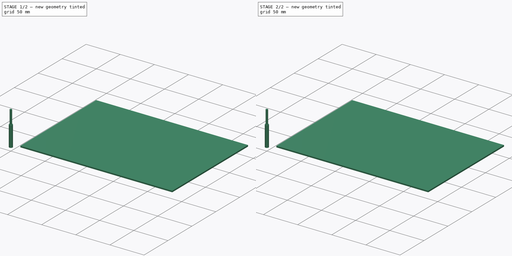
[diagram: build sequence overview — one tinted view per stage of 2, left to right]
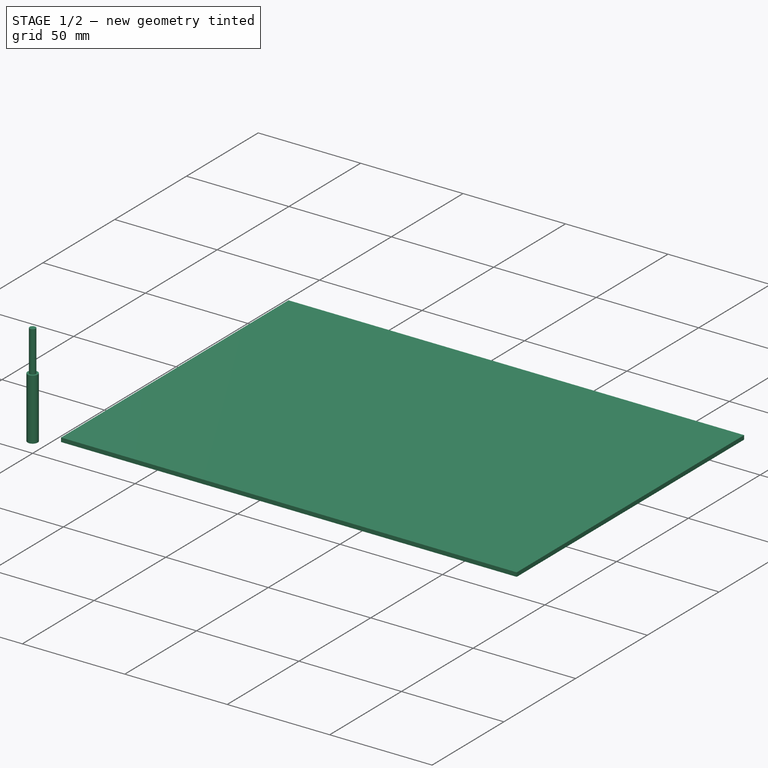
[diagram: stage 1 of 2 — iso view after this stage's code; geometry added in this stage tinted green]
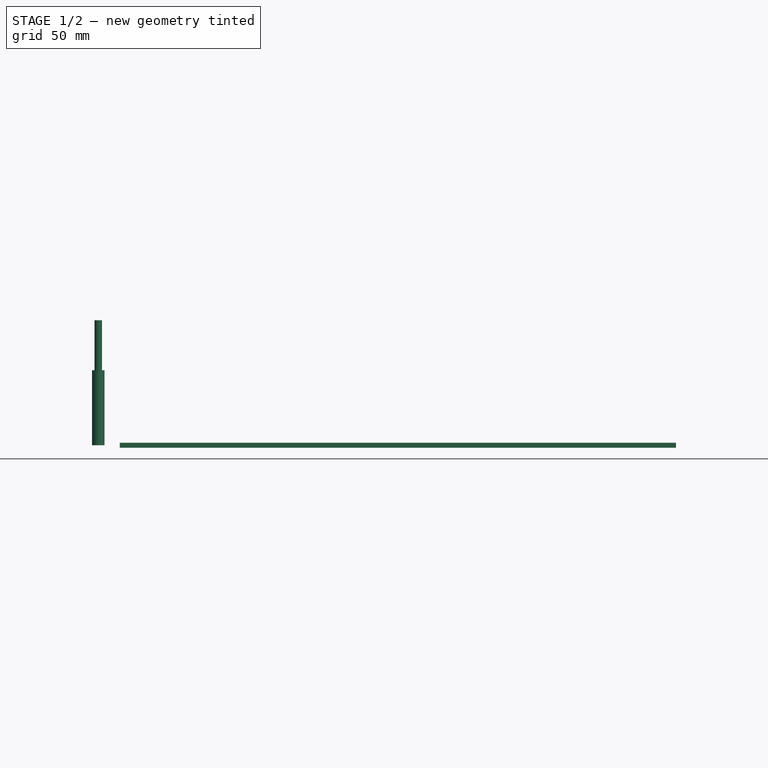
[diagram: stage 1 of 2 — front view after this stage's code; geometry added in this stage tinted green]
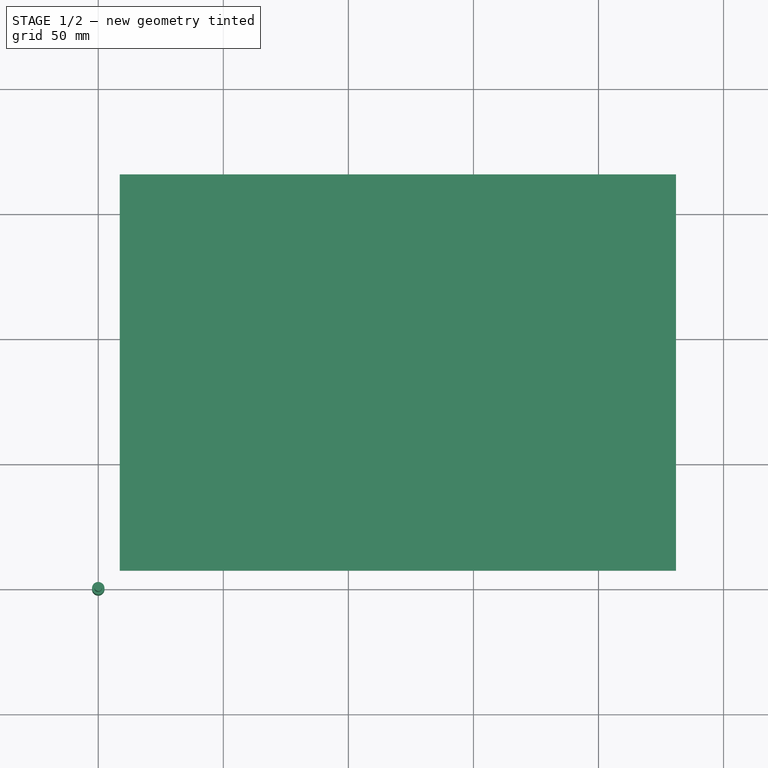
[diagram: stage 1 of 2 — top view after this stage's code; geometry added in this stage tinted green]
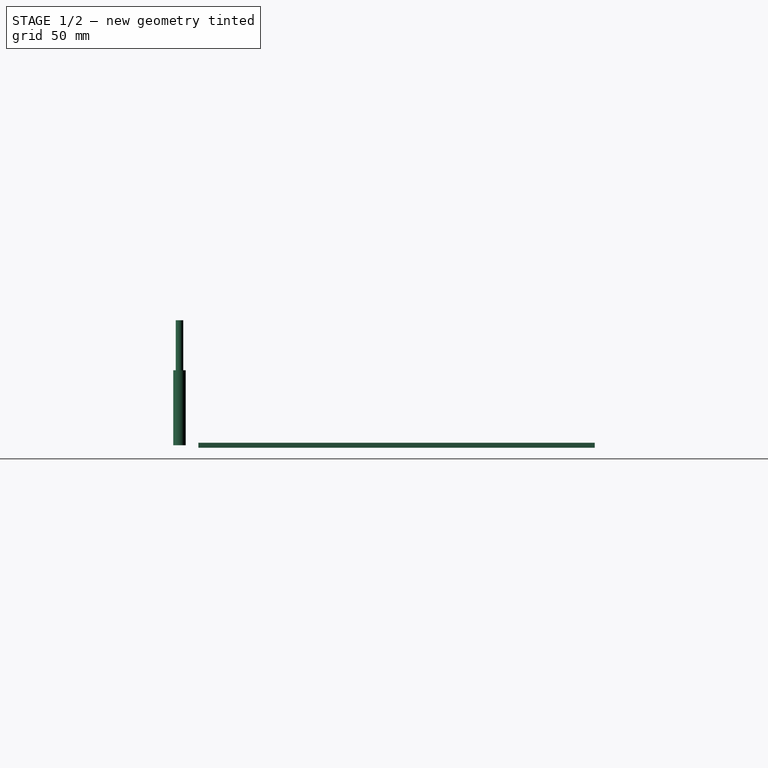
[diagram: stage 1 of 2 — right view after this stage's code; geometry added in this stage tinted green]
FCSTD DOCUMENT  (FreeCAD 1.0R39109 (Git))
Label: testframe
License: All rights reserved
LicenseURL: https://en.wikipedia.org/wiki/All_rights_reserved
objects: Sketcher::SketchObject×3, App::DocumentObjectGroup×3, Part::FeaturePython×3, Path::FeaturePython×3, Part::Part2DObjectPython×2, PartDesign::Body×1, App::FeaturePython×1
note: 12 computed .brp shape members not serialized (recipe doc carries the construction recipe); baked Part::Feature solids carry a one-line shape summary decoded from their .brp

FEATURE [Part::FeaturePython] Stock  # WARN: FeaturePython — macro-defined, semantics opaque (R4)
  Base = -> Model
  ExtXneg = 1
  ExtXpos = 1
  ExtYneg = 1
  ExtYpos = 1
  ExtZneg = 1
  ExtZpos = 1
  Placement = pos=(9.60935,8.51629,0) rot=(0,0,1;0rad)
  StockType = FromBase
FEATURE [Part::FeaturePython] ToolBit001  label="Endmill003"  # Path/CAM toolbit (typed FeaturePython)
  BitPropertyNames = Chipload | CuttingEdgeHeight | Diameter | Flutes | Length | Material | ShankDiameter | SpindleDirection
  BitShape = <path>
  Chipload = 0
  CuttingEdgeHeight = 30
  Diameter = 5
  Flutes = 0
  Length = 50
  Material = 0
  ShankDiameter = 3
  ShapeName = endmill
  SpindleDirection = 0
FEATURE [Path::FeaturePython] TC__Default_Tool  label="TC: Default Tool"  # Path/CAM operation (typed FeaturePython)
  HorizFeed = 0
  HorizRapid = 0
  SpindleDir = 0
  SpindleSpeed = 750
  Tool = -> ToolBit001
  ToolNumber = 1
  VertFeed = 0
  VertRapid = 0
  expr: HorizRapid = SetupSheet.HorizRapid
  expr: VertRapid = SetupSheet.VertRapid
FEATURE [App::DocumentObjectGroup] Tools
  Group = -> [TC__Default_Tool]
FEATURE [Path::FeaturePython] Engrave  # Path/CAM operation (typed FeaturePython)
  Active = true
  ClearanceHeight = 6
  CoolantMode = 0
  CycleTime = Cycletime Error
  FinalDepth = -5
  OpFinalDepth = -5
  OpStartDepth = 0
  OpStockZMax = 1
  OpStockZMin = -1
  OpToolDiameter = 5
  SafeHeight = 4
  StartDepth = 0
  StartVertex = 0
  StepDown = 5
  ToolController = -> TC__Default_Tool
  expr: ClearanceHeight = OpStockZMax + SetupSheet.ClearanceHeightOffset
  expr: FinalDepth = OpFinalDepth
  expr: SafeHeight = OpStockZMax + SetupSheet.SafeHeightOffset
  expr: StartDepth = OpStartDepth
  expr: StepDown = OpToolDiameter
FEATURE [App::DocumentObjectGroup] Operations
  Group = -> [Engrave]
FEATURE [Path::FeaturePython] Job  # Path/CAM operation (typed FeaturePython)
  CycleTime = 00:00:00
  Fixtures = G54
  GeometryTolerance = 0.01
  JobType = 0
  Model = -> Model
  Operations = -> Operations
  OrderOutputBy = 0
  PostProcessor = 1
  SetupSheet = -> SetupSheet
  SplitOutput = false
  Stock = -> Stock
  Tools = -> Tools
note: 2 file-system paths scrubbed to <path> (originals preserved in the JSON sidecar)
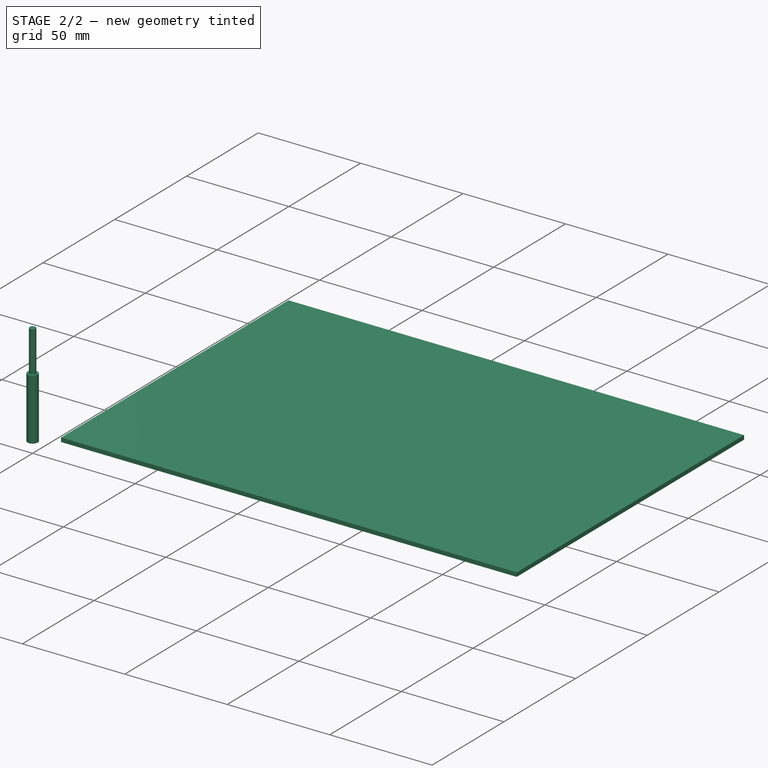
[diagram: stage 2 of 2 — iso view after this stage's code; geometry added in this stage tinted green]
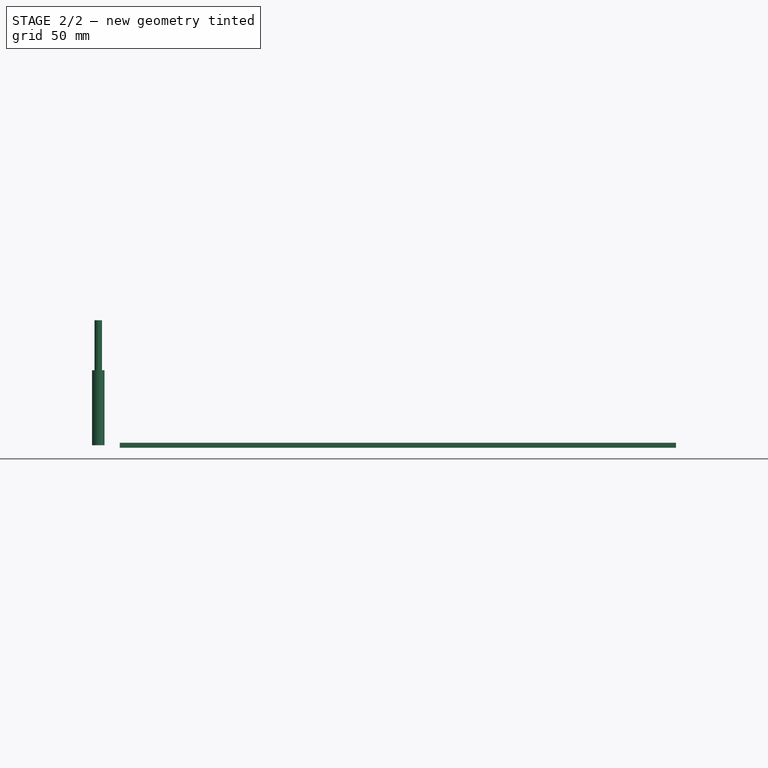
[diagram: stage 2 of 2 — front view after this stage's code; geometry added in this stage tinted green]
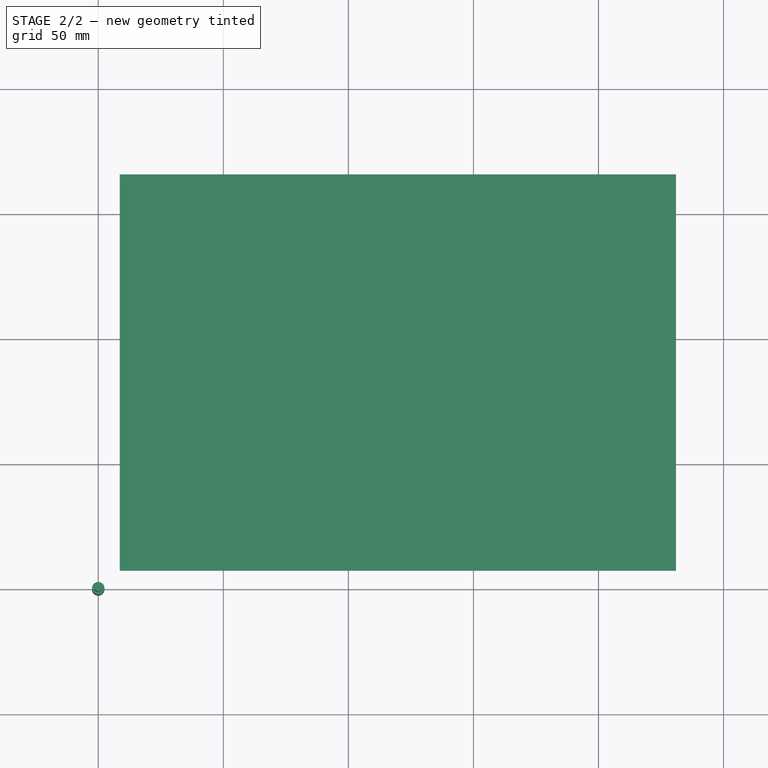
[diagram: stage 2 of 2 — top view after this stage's code; geometry added in this stage tinted green]
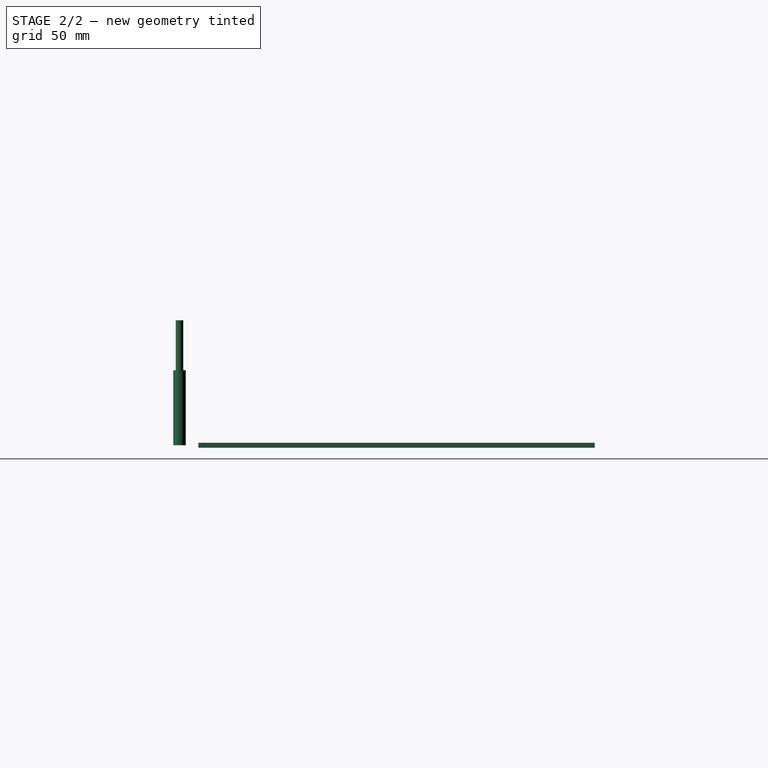
[diagram: stage 2 of 2 — right view after this stage's code; geometry added in this stage tinted green]
FEATURE [Sketcher::SketchObject] Sketch  label="A4"
  ArcFitTolerance = 1e-06
  AttachmentSupport = -> [XY_Plane]
  FullyConstrained = true
  MakeInternals = false
  MapMode = 5
  sketch-geometry (4):
    g0: LineSegment StartX=0 StartY=-4e-16 StartZ=0 EndX=270 EndY=-4e-16 EndZ=0
    g1: LineSegment StartX=270 StartY=-4e-16 StartZ=0 EndX=270 EndY=180 EndZ=0
    g2: LineSegment StartX=270 StartY=180 StartZ=0 EndX=0 EndY=180 EndZ=0
    g3: LineSegment StartX=0 StartY=180 StartZ=0 EndX=0 EndY=0 EndZ=0
  constraints (12):
    c: Coincident(g0,g1)
    c: Coincident(g1,g2)
    c: Coincident(g2,g3)
    c: Coincident(g3,g0)
    c: Horizontal(g0)
    c: Horizontal(g2)
    c: Vertical(g1)
    c: Vertical(g3)
    c: PointOnObject(g0,g-2)
    c: DistanceX(g2,g2) = 270
    c: DistanceY(g3,g3) = 180
    c: PointOnObject(g0,g-1)
FEATURE [PartDesign::Body] Body
  AllowCompound = false
  Group = -> [Sketch]
  Origin = -> Origin
FEATURE [Sketcher::SketchObject] Sketch001
  ArcFitTolerance = 1e-06
  AttachmentSupport = -> [XY_Plane]
  ExternalGeometry = -> [Sketch]
  FullyConstrained = false
  MakeInternals = false
  MapMode = 5
  sketch-geometry (47):
    g0: LineSegment StartX=99.6094 StartY=72.5 StartZ=0 EndX=99.6094 EndY=51 EndZ=0
    g1: LineSegment StartX=99.6094 StartY=51 StartZ=0 EndX=82.6094 EndY=51 EndZ=0
    g2: LineSegment StartX=82.6094 StartY=51 StartZ=0 EndX=82.6094 EndY=44 EndZ=0
    g3: LineSegment StartX=82.6094 StartY=44 StartZ=0 EndX=99.6094 EndY=44 EndZ=0
    g4: LineSegment StartX=99.6094 StartY=44 StartZ=0 EndX=99.6094 EndY=22.5 EndZ=0
    g5: LineSegment StartX=99.6094 StartY=22.5 StartZ=0 EndX=109.609 EndY=22.5 EndZ=0
    g6: LineSegment StartX=109.609 StartY=22.5 StartZ=0 EndX=109.609 EndY=72.5 EndZ=0
    g7: LineSegment StartX=109.609 StartY=72.5 StartZ=0 EndX=99.6094 EndY=72.5 EndZ=0
    g8: LineSegment [constr] StartX=99.6094 StartY=72.5 StartZ=0 EndX=99.6094 EndY=107.5 EndZ=0
    g9: LineSegment StartX=99.6094 StartY=107.5 StartZ=0 EndX=109.609 EndY=107.5 EndZ=0
    g10: LineSegment StartX=109.609 StartY=107.5 StartZ=0 EndX=109.609 EndY=157.5 EndZ=0
    g11: LineSegment StartX=109.609 StartY=157.5 StartZ=0 EndX=99.6094 EndY=157.5 EndZ=0
    g12: LineSegment StartX=99.6094 StartY=157.5 StartZ=0 EndX=99.6094 EndY=136 EndZ=0
    g13: LineSegment StartX=99.6094 StartY=136 StartZ=0 EndX=82.6094 EndY=136 EndZ=0
    g14: LineSegment StartX=82.6094 StartY=136 StartZ=0 EndX=82.6094 EndY=129 EndZ=0
    g15: LineSegment StartX=82.6094 StartY=129 StartZ=0 EndX=99.6094 EndY=129 EndZ=0
    g16: LineSegment StartX=99.6094 StartY=129 StartZ=0 EndX=99.6094 EndY=107.5 EndZ=0
    g17: LineSegment [constr] StartX=82.6094 StartY=51 StartZ=0 EndX=82.6094 EndY=90 EndZ=0
    g18: LineSegment [constr] StartX=82.6094 StartY=90 StartZ=0 EndX=82.6094 EndY=129 EndZ=0
    g19: LineSegment [constr] StartX=82.6094 StartY=90 StartZ=0 EndX=9.60935 EndY=90 EndZ=0
    g20: LineSegment StartX=9.60935 StartY=90 StartZ=0 EndX=9.60935 EndY=125.311 EndZ=0
    g21: LineSegment StartX=49.2981 StartY=165 StartZ=0 EndX=111.079 EndY=165 EndZ=0
    g22: LineSegment StartX=119.609 StartY=156.47 StartZ=0 EndX=119.609 EndY=20.6812 EndZ=0
    g23: LineSegment StartX=113.928 StartY=15 StartZ=0 EndX=49.2981 EndY=15 EndZ=0
    g24: LineSegment StartX=9.60935 StartY=54.6888 StartZ=0 EndX=9.60935 EndY=90 EndZ=0
    g25: LineSegment [constr] StartX=270 StartY=180 StartZ=0 EndX=270.343 EndY=90 EndZ=0
    g26: LineSegment [constr] StartX=270.343 StartY=90 StartZ=0 EndX=270 EndY=0 EndZ=0
    g27: LineSegment [constr] StartX=82.6094 StartY=90 StartZ=0 EndX=270.343 EndY=90 EndZ=0
    g28: LineSegment StartX=82.6094 StartY=90 StartZ=0 EndX=82.6094 EndY=122.5 EndZ=0
    g29: LineSegment StartX=82.6094 StartY=122.5 StartZ=0 EndX=65.6094 EndY=122.5 EndZ=0
    g30: LineSegment StartX=65.6094 StartY=122.5 StartZ=0 EndX=65.6094 EndY=57.5 EndZ=0
    g31: LineSegment StartX=65.6094 StartY=57.5 StartZ=0 EndX=82.6094 EndY=57.5 EndZ=0
    g32: LineSegment StartX=82.6094 StartY=57.5 StartZ=0 EndX=82.6094 EndY=90 EndZ=0
    g33: LineSegment StartX=19.6094 StartY=90 StartZ=0 EndX=19.6094 EndY=107 EndZ=0
    g34: LineSegment StartX=19.6094 StartY=107 StartZ=0 EndX=60.6094 EndY=107 EndZ=0
    g35: LineSegment StartX=60.6094 StartY=107 StartZ=0 EndX=60.6094 EndY=73 EndZ=0
    g36: LineSegment StartX=60.6094 StartY=73 StartZ=0 EndX=19.6094 EndY=73 EndZ=0
    g37: LineSegment StartX=19.6094 StartY=73 StartZ=0 EndX=19.6094 EndY=90 EndZ=0
    g38: ArcOfCircle CenterX=49.2981 CenterY=125.311 CenterZ=0 NormalX=0 NormalY=0 NormalZ=1 AngleXU=0 Radius=39.6888 StartAngle=1.5708 EndAngle=3.14159
    g39: GeomPoint [constr] X=9.60935 Y=165 Z=0
    g40: ArcOfCircle CenterX=49.2981 CenterY=54.6888 CenterZ=0 NormalX=0 NormalY=0 NormalZ=1 AngleXU=0 Radius=39.6888 StartAngle=3.14159 EndAngle=4.71239
    g41: GeomPoint [constr] X=9.60935 Y=15 Z=0
    g42: ArcOfCircle CenterX=111.079 CenterY=156.47 CenterZ=0 NormalX=0 NormalY=0 NormalZ=1 AngleXU=0 Radius=8.53036 StartAngle=-9e-16 EndAngle=1.5708
    g43: GeomPoint [constr] X=119.609 Y=165 Z=0
    g44: ArcOfCircle CenterX=113.928 CenterY=20.6812 CenterZ=0 NormalX=0 NormalY=0 NormalZ=1 AngleXU=0 Radius=5.68121 StartAngle=4.71239 EndAngle=6.28319
    g45: GeomPoint [constr] X=119.609 Y=15 Z=0
    g46: LineSegment [constr] StartX=49.2981 StartY=54.6888 StartZ=0 EndX=49.2981 EndY=125.311 EndZ=0
  constraints (123):
    c: Vertical(g0)
    c: Coincident(g1,g0)
    c: Coincident(g2,g1)
    c: Vertical(g2)
    c: Coincident(g3,g2)
    c: Horizontal(g3)
    c: Coincident(g4,g3)
    c: Vertical(g4)
    c: Coincident(g5,g4)
    c: Coincident(g6,g5)
    c: Vertical(g6)
    c: Coincident(g7,g6)
    c: Coincident(g7,g0)
    c: Horizontal(g7)
    c: Horizontal(g1)
    c: Horizontal(g5)
    c: Equal(g0,g4)
    c: Equal(g1,g3)
    c: DistanceY(g2,g2) = 7
    c: DistanceX(g1,g1) = 17
    c: DistanceX(g7,g7) = 10
    c: DistanceY(g6,g6) = 50
    c: Coincident(g8,g0)
    c: Vertical(g8)
    c: Coincident(g9,g8)
    c: Horizontal(g9)
    c: Coincident(g10,g9)
    c: Vertical(g10)
    c: PointOnObject(g11,g10)
    c: Horizontal(g11)
    c: Coincident(g12,g11)
    c: Vertical(g12)
    c: Coincident(g13,g12)
    c: Horizontal(g13)
    c: Coincident(g14,g13)
    c: Vertical(g14)
    c: Coincident(g15,g14)
    c: Horizontal(g15)
    c: Coincident(g16,g15)
    c: Coincident(g16,g8)
    c: Vertical(g16)
    c: Equal(g16,g12)
    c: Equal(g15,g1)
    c: Equal(g9,g7)
    c: Equal(g14,g2)
    c: Vertical(g12,g15)
    c: PointOnObject(g10,g11)
    c: Equal(g6,g10)
    c: DistanceY(g0,g9) = 35
    c: Coincident(g17,g1)
    c: Vertical(g17)
    c: Coincident(g18,g17)
    c: Coincident(g18,g14)
    c: Equal(g17,g18)
    c: Coincident(g19,g17)
    c: Horizontal(g19)
    c: Coincident(g20,g19)
    c: Vertical(g20)
    c: Horizontal(g21)
    c: Vertical(g22)
    c: Horizontal(g23)
    c: Coincident(g24,g19)
    c: Vertical(g24)
    c: Coincident(g26,g25)
    c: PointOnObject(g26,g-1)
    c: Coincident(g25,g-4)
    c: PointOnObject(g26,g-3)
    c: Equal(g26,g25)
    c: Coincident(g27,g17)
    c: Coincident(g27,g25)
    c: Horizontal(g27)
    c: DistanceX(g10,g43) = 10
    c: DistanceX(g41,g45) = 110
    c: DistanceY(g41,g39) = 150
    c: Coincident(g28,g17)
    c: PointOnObject(g28,g18)
    c: Coincident(g29,g28)
    c: Horizontal(g29)
    c: Coincident(g30,g29)
    c: Vertical(g30)
    c: Coincident(g31,g30)
    c: PointOnObject(g31,g17)
    c: Horizontal(g31)
    c: Coincident(g32,g31)
    c: Coincident(g32,g17)
    c: Equal(g32,g28)
    c: DistanceY(g30,g30) = 65
    c: DistanceX(g29,g29) = 17
    c: PointOnObject(g33,g19)
    c: Vertical(g33)
    c: Coincident(g34,g33)
    c: Horizontal(g34)
    c: Coincident(g35,g34)
    c: Vertical(g35)
    c: Coincident(g36,g35)
    c: Horizontal(g36)
    c: Coincident(g37,g36)
    c: Coincident(g37,g33)
    c: Equal(g37,g33)
    c: Vertical(g37)
    c: DistanceX(g34,g34) = 41
    c: DistanceY(g35,g35) = 34
    c: DistanceX(g19,g33) = 10
    c: PointOnObject(g39,g20)
    c: PointOnObject(g39,g21)
    c: Tangent(g20,g38) = 1.5708
    c: Tangent(g21,g38) = 1.5708
    c: PointOnObject(g41,g24)
    c: PointOnObject(g41,g23)
    c: Tangent(g24,g40) = 1.5708
    c: Tangent(g23,g40) = 1.5708
    c: PointOnObject(g43,g21)
    c: PointOnObject(g43,g22)
    c: Tangent(g21,g42) = 1.5708
    c: Tangent(g22,g42) = 1.5708
    c: PointOnObject(g45,g23)
    c: PointOnObject(g45,g22)
    c: Tangent(g23,g44) = 1.5708
    c: Tangent(g22,g44) = 1.5708
    c: Coincident(g46,g40)
    c: Coincident(g46,g38)
    c: Vertical(g46)
    c: Equal(g24,g20)
FEATURE [Sketcher::SketchObject] Sketch002
  ArcFitTolerance = 1e-06
  AttachmentSupport = -> [XY_Plane]
  ExternalGeometry = -> [Sketch001]
  FullyConstrained = false
  MakeInternals = false
  MapMode = 5
  sketch-geometry (106):
    g0: LineSegment StartX=228.413 StartY=164.928 StartZ=0 EndX=153.413 EndY=164.928 EndZ=0
    g1: LineSegment StartX=143.413 StartY=154.928 StartZ=0 EndX=143.413 EndY=139.928 EndZ=0
    g2: LineSegment StartX=143.413 StartY=139.928 StartZ=0 EndX=148.413 EndY=139.928 EndZ=0
    g3: LineSegment StartX=148.413 StartY=139.928 StartZ=0 EndX=148.413 EndY=135.928 EndZ=0
    g4: LineSegment StartX=148.413 StartY=135.928 StartZ=0 EndX=173.413 EndY=135.928 EndZ=0
    g5: LineSegment StartX=173.413 StartY=135.928 StartZ=0 EndX=173.413 EndY=139.928 EndZ=0
    g6: LineSegment StartX=173.413 StartY=139.928 StartZ=0 EndX=178.413 EndY=139.928 EndZ=0
    g7: LineSegment [constr] StartX=178.413 StartY=139.928 StartZ=0 EndX=178.413 EndY=159.928 EndZ=0
    g8: LineSegment [constr] StartX=178.413 StartY=159.928 StartZ=0 EndX=228.413 EndY=159.928 EndZ=0
    g9: LineSegment StartX=228.413 StartY=159.928 StartZ=0 EndX=228.413 EndY=164.928 EndZ=0
    g10: LineSegment StartX=38.217 StartY=134.5 StartZ=0 EndX=38.217 EndY=130.5 EndZ=0
    g11: LineSegment StartX=38.217 StartY=130.5 StartZ=0 EndX=63.217 EndY=130.5 EndZ=0
    g12: LineSegment StartX=63.217 StartY=130.5 StartZ=0 EndX=63.217 EndY=134.5 EndZ=0
    g13: LineSegment StartX=63.217 StartY=134.5 StartZ=0 EndX=38.217 EndY=134.5 EndZ=0
    g14: LineSegment [constr] StartX=82.6094 StartY=136 StartZ=0 EndX=63.217 EndY=134.5 EndZ=0
    g15: LineSegment [constr] StartX=82.6094 StartY=129 StartZ=0 EndX=63.217 EndY=130.5 EndZ=0
    g16: LineSegment StartX=178.413 StartY=139.928 StartZ=0 EndX=178.413 EndY=143.428 EndZ=0
    g17: LineSegment StartX=178.413 StartY=143.428 StartZ=0 EndX=208.413 EndY=143.428 EndZ=0
    g18: LineSegment StartX=208.413 StartY=143.428 StartZ=0 EndX=208.413 EndY=159.928 EndZ=0
    g19: LineSegment StartX=208.413 StartY=159.928 StartZ=0 EndX=228.413 EndY=159.928 EndZ=0
    g20: ArcOfCircle CenterX=153.413 CenterY=154.928 CenterZ=0 NormalX=0 NormalY=0 NormalZ=1 AngleXU=0 Radius=10 StartAngle=1.5708 EndAngle=3.14159
    g21: GeomPoint [constr] X=143.413 Y=164.928 Z=0
    g22: LineSegment StartX=38.217 StartY=49.5 StartZ=0 EndX=38.217 EndY=45.5 EndZ=0
    g23: LineSegment StartX=38.217 StartY=45.5 StartZ=0 EndX=63.217 EndY=45.5 EndZ=0
    g24: LineSegment StartX=63.217 StartY=45.5 StartZ=0 EndX=63.217 EndY=49.5 EndZ=0
    g25: LineSegment StartX=63.217 StartY=49.5 StartZ=0 EndX=38.217 EndY=49.5 EndZ=0
    g26: LineSegment StartX=228.809 StartY=133.075 StartZ=0 EndX=153.809 EndY=133.075 EndZ=0
    g27: LineSegment StartX=143.809 StartY=123.075 StartZ=0 EndX=143.809 EndY=108.075 EndZ=0
    g28: LineSegment StartX=143.809 StartY=108.075 StartZ=0 EndX=148.809 EndY=108.075 EndZ=0
    g29: LineSegment StartX=148.809 StartY=108.075 StartZ=0 EndX=148.809 EndY=104.075 EndZ=0
    g30: LineSegment StartX=148.809 StartY=104.075 StartZ=0 EndX=173.809 EndY=104.075 EndZ=0
    g31: LineSegment StartX=173.809 StartY=104.075 StartZ=0 EndX=173.809 EndY=108.075 EndZ=0
    g32: LineSegment StartX=173.809 StartY=108.075 StartZ=0 EndX=178.809 EndY=108.075 EndZ=0
    g33: LineSegment [constr] StartX=178.809 StartY=108.075 StartZ=0 EndX=178.809 EndY=128.075 EndZ=0
    g34: LineSegment [constr] StartX=178.809 StartY=128.075 StartZ=0 EndX=228.809 EndY=128.075 EndZ=0
    g35: LineSegment StartX=228.809 StartY=128.075 StartZ=0 EndX=228.809 EndY=133.075 EndZ=0
    g36: LineSegment StartX=178.809 StartY=108.075 StartZ=0 EndX=178.809 EndY=111.575 EndZ=0
    g37: LineSegment StartX=178.809 StartY=111.575 StartZ=0 EndX=208.809 EndY=111.575 EndZ=0
    g38: LineSegment StartX=208.809 StartY=111.575 StartZ=0 EndX=208.809 EndY=128.075 EndZ=0
    g39: LineSegment StartX=208.809 StartY=128.075 StartZ=0 EndX=228.809 EndY=128.075 EndZ=0
    g40: ArcOfCircle CenterX=153.809 CenterY=123.075 CenterZ=0 NormalX=0 NormalY=0 NormalZ=1 AngleXU=0 Radius=10 StartAngle=1.5708 EndAngle=3.14159
    g41: GeomPoint [constr] X=143.809 Y=133.075 Z=0
    g42: LineSegment StartX=229.205 StartY=101.222 StartZ=0 EndX=154.205 EndY=101.222 EndZ=0
    g43: LineSegment StartX=144.205 StartY=91.2223 StartZ=0 EndX=144.205 EndY=76.2223 EndZ=0
    g44: LineSegment StartX=144.205 StartY=76.2223 StartZ=0 EndX=149.205 EndY=76.2223 EndZ=0
    g45: LineSegment StartX=149.205 StartY=76.2223 StartZ=0 EndX=149.205 EndY=72.2223 EndZ=0
    g46: LineSegment StartX=149.205 StartY=72.2223 StartZ=0 EndX=174.205 EndY=72.2223 EndZ=0
    g47: LineSegment StartX=174.205 StartY=72.2223 StartZ=0 EndX=174.205 EndY=76.2223 EndZ=0
    g48: LineSegment StartX=174.205 StartY=76.2223 StartZ=0 EndX=179.205 EndY=76.2223 EndZ=0
    g49: LineSegment [constr] StartX=179.205 StartY=76.2223 StartZ=0 EndX=179.205 EndY=96.2223 EndZ=0
    g50: LineSegment [constr] StartX=179.205 StartY=96.2223 StartZ=0 EndX=229.205 EndY=96.2223 EndZ=0
    g51: LineSegment StartX=229.205 StartY=96.2223 StartZ=0 EndX=229.205 EndY=101.222 EndZ=0
    g52: LineSegment StartX=179.205 StartY=76.2223 StartZ=0 EndX=179.205 EndY=79.7223 EndZ=0
    g53: LineSegment StartX=179.205 StartY=79.7223 StartZ=0 EndX=209.205 EndY=79.7223 EndZ=0
    g54: LineSegment StartX=209.205 StartY=79.7223 StartZ=0 EndX=209.205 EndY=96.2223 EndZ=0
    g55: LineSegment StartX=209.205 StartY=96.2223 StartZ=0 EndX=229.205 EndY=96.2223 EndZ=0
    g56: ArcOfCircle CenterX=154.205 CenterY=91.2223 CenterZ=0 NormalX=0 NormalY=0 NormalZ=1 AngleXU=0 Radius=10 StartAngle=1.5708 EndAngle=3.14159
    g57: GeomPoint [constr] X=144.205 Y=101.222 Z=0
    g58: LineSegment StartX=229.601 StartY=69.3693 StartZ=0 EndX=154.601 EndY=69.3693 EndZ=0
    g59: LineSegment StartX=144.601 StartY=59.3693 StartZ=0 EndX=144.601 EndY=44.3693 EndZ=0
    g60: LineSegment StartX=144.601 StartY=44.3693 StartZ=0 EndX=149.601 EndY=44.3693 EndZ=0
    g61: LineSegment StartX=149.601 StartY=44.3693 StartZ=0 EndX=149.601 EndY=40.3693 EndZ=0
    g62: LineSegment StartX=149.601 StartY=40.3693 StartZ=0 EndX=174.601 EndY=40.3693 EndZ=0
    g63: LineSegment StartX=174.601 StartY=40.3693 StartZ=0 EndX=174.601 EndY=44.3693 EndZ=0
    g64: LineSegment StartX=174.601 StartY=44.3693 StartZ=0 EndX=179.601 EndY=44.3693 EndZ=0
    g65: LineSegment [constr] StartX=179.601 StartY=44.3693 StartZ=0 EndX=179.601 EndY=64.3693 EndZ=0
    g66: LineSegment [constr] StartX=179.601 StartY=64.3693 StartZ=0 EndX=229.601 EndY=64.3693 EndZ=0
    g67: LineSegment StartX=229.601 StartY=64.3693 StartZ=0 EndX=229.601 EndY=69.3693 EndZ=0
    g68: LineSegment StartX=179.601 StartY=44.3693 StartZ=0 EndX=179.601 EndY=47.8693 EndZ=0
    g69: LineSegment StartX=179.601 StartY=47.8693 StartZ=0 EndX=209.601 EndY=47.8693 EndZ=0
    g70: LineSegment StartX=209.601 StartY=47.8693 StartZ=0 EndX=209.601 EndY=64.3693 EndZ=0
    g71: LineSegment StartX=209.601 StartY=64.3693 StartZ=0 EndX=229.601 EndY=64.3693 EndZ=0
    g72: ArcOfCircle CenterX=154.601 CenterY=59.3693 CenterZ=0 NormalX=0 NormalY=0 NormalZ=1 AngleXU=0 Radius=10 StartAngle=1.5708 EndAngle=3.14159
    g73: GeomPoint [constr] X=144.601 Y=69.3693 Z=0
    g74: LineSegment StartX=229.996 StartY=37.5163 StartZ=0 EndX=154.996 EndY=37.5163 EndZ=0
    g75: LineSegment StartX=144.996 StartY=27.5163 StartZ=0 EndX=144.996 EndY=12.5163 EndZ=0
    g76: LineSegment StartX=144.996 StartY=12.5163 StartZ=0 EndX=149.996 EndY=12.5163 EndZ=0
    g77: LineSegment StartX=149.996 StartY=12.5163 StartZ=0 EndX=149.996 EndY=8.51629 EndZ=0
    g78: LineSegment StartX=149.996 StartY=8.51629 StartZ=0 EndX=174.996 EndY=8.51629 EndZ=0
    g79: LineSegment StartX=174.996 StartY=8.51629 StartZ=0 EndX=174.996 EndY=12.5163 EndZ=0
    g80: LineSegment StartX=174.996 StartY=12.5163 StartZ=0 EndX=179.996 EndY=12.5163 EndZ=0
    g81: LineSegment [constr] StartX=179.996 StartY=12.5163 StartZ=0 EndX=179.996 EndY=32.5163 EndZ=0
    g82: LineSegment [constr] StartX=179.996 StartY=32.5163 StartZ=0 EndX=229.996 EndY=32.5163 EndZ=0
    g83: LineSegment StartX=229.996 StartY=32.5163 StartZ=0 EndX=229.996 EndY=37.5163 EndZ=0
    g84: LineSegment StartX=179.996 StartY=12.5163 StartZ=0 EndX=179.996 EndY=16.0163 EndZ=0
    g85: LineSegment StartX=179.996 StartY=16.0163 StartZ=0 EndX=209.996 EndY=16.0163 EndZ=0
    g86: LineSegment StartX=209.996 StartY=16.0163 StartZ=0 EndX=209.996 EndY=32.5163 EndZ=0
    g87: LineSegment StartX=209.996 StartY=32.5163 StartZ=0 EndX=229.996 EndY=32.5163 EndZ=0
    g88: ArcOfCircle CenterX=154.996 CenterY=27.5163 CenterZ=0 NormalX=0 NormalY=0 NormalZ=1 AngleXU=0 Radius=10 StartAngle=1.5708 EndAngle=3.14159
    g89: GeomPoint [constr] X=144.996 Y=37.5163 Z=0
    g90: LineSegment StartX=38.217 StartY=147.629 StartZ=0 EndX=38.217 EndY=143.629 EndZ=0
    g91: LineSegment StartX=38.217 StartY=143.629 StartZ=0 EndX=63.217 EndY=143.629 EndZ=0
    g92: LineSegment StartX=63.217 StartY=143.629 StartZ=0 EndX=63.217 EndY=147.629 EndZ=0
    g93: LineSegment StartX=63.217 StartY=147.629 StartZ=0 EndX=38.217 EndY=147.629 EndZ=0
    g94: LineSegment StartX=38.217 StartY=37.5623 StartZ=0 EndX=38.217 EndY=33.5623 EndZ=0
    g95: LineSegment StartX=38.217 StartY=33.5623 StartZ=0 EndX=63.217 EndY=33.5623 EndZ=0
    g96: LineSegment StartX=63.217 StartY=33.5623 StartZ=0 EndX=63.217 EndY=37.5623 EndZ=0
    g97: LineSegment StartX=63.217 StartY=37.5623 StartZ=0 EndX=38.217 EndY=37.5623 EndZ=0
    g98: LineSegment [constr] StartX=38.217 StartY=143.629 StartZ=0 EndX=38.217 EndY=134.5 EndZ=0
    g99: LineSegment [constr] StartX=63.217 StartY=143.629 StartZ=0 EndX=63.217 EndY=134.5 EndZ=0
    g100: LineSegment [constr] StartX=38.217 StartY=45.5 StartZ=0 EndX=38.217 EndY=37.5623 EndZ=0
    g101: LineSegment [constr] StartX=63.217 StartY=45.5 StartZ=0 EndX=63.217 EndY=37.5623 EndZ=0
    g102: LineSegment [constr] StartX=63.217 StartY=49.5 StartZ=0 EndX=63.217 EndY=130.5 EndZ=0
    g103: LineSegment [constr] StartX=82.6094 StartY=51 StartZ=0 EndX=63.217 EndY=49.5 EndZ=0
    g104: LineSegment [constr] StartX=82.6094 StartY=44 StartZ=0 EndX=63.217 EndY=45.5 EndZ=0
    g105: LineSegment [constr] StartX=38.217 StartY=130.5 StartZ=0 EndX=38.217 EndY=49.5 EndZ=0
  constraints (287):
    c: Horizontal(g0)
    c: Vertical(g1)
    c: Coincident(g2,g1)
    c: Coincident(g3,g2)
    c: Coincident(g4,g3)
    c: Horizontal(g4)
    c: Coincident(g5,g4)
    c: Coincident(g6,g5)
    c: Coincident(g7,g6)
    c: Vertical(g7)
    c: Coincident(g8,g7)
    c: Horizontal(g8)
    c: Coincident(g9,g8)
    c: Coincident(g9,g0)
    c: Vertical(g9)
    c: Horizontal(g6)
    c: Horizontal(g2)
    c: Vertical(g5)
    c: Vertical(g3)
    c: Equal(g2,g6)
    c: DistanceX(g8,g8) = 50
    c: DistanceX(g21,g0) = 85
    c: DistanceY(g7,g7) = 20
    c: Coincident(g10,g11)
    c: Coincident(g11,g12)
    c: Coincident(g12,g13)
    c: Coincident(g13,g10)
    c: Vertical(g10)
    c: Vertical(g12)
    c: Horizontal(g11)
    c: Horizontal(g13)
    c: DistanceY(g10,g10) = 4
    c: DistanceX(g13,g13) = 25
    c: DistanceX(g2,g2) = 5
    c: Equal(g3,g5)
    c: DistanceY(g3,g3) = 4
    c: DistanceY(g9,g9) = 5
    c: Coincident(g14,g-3)
    c: Coincident(g14,g12)
    c: Coincident(g15,g-3)
    c: Coincident(g15,g11)
    c: Equal(g15,g14)
    c: DistanceX(g4,g4) = 25
    c: Coincident(g16,g6)
    c: PointOnObject(g16,g7)
    c: Coincident(g17,g16)
    c: Horizontal(g17)
    c: Coincident(g18,g17)
    c: PointOnObject(g18,g8)
    c: Vertical(g18)
    c: Coincident(g19,g18)
    c: Coincident(g19,g8)
    c: DistanceY(g16,g16) = 3.5
    c: DistanceX(g17,g17) = 30
    c: PointOnObject(g21,g0)
    c: PointOnObject(g21,g1)
    c: Tangent(g0,g20) = -1.5708
    c: Tangent(g1,g20) = -1.5708
    c: Radius(g20) = 10
    c: Coincident(g22,g23)
    c: Coincident(g23,g24)
    c: Coincident(g24,g25)
    c: Coincident(g25,g22)
    c: Vertical(g22)
    c: Vertical(g24)
    c: Horizontal(g23)
    c: Horizontal(g25)
    c: DistanceY(g22,g22) = 4
    c: DistanceX(g25,g25) = 25
    c: Horizontal(g26)
    c: Horizontal(g42)
    c: Horizontal(g58)
    c: Horizontal(g74)
    c: Vertical(g27)
    c: Vertical(g43)
    c: Vertical(g59)
    c: Vertical(g75)
    c: Coincident(g28,g27)
    c: Coincident(g44,g43)
    c: Coincident(g60,g59)
    c: Coincident(g76,g75)
    c: Coincident(g29,g28)
    c: Coincident(g45,g44)
    c: Coincident(g61,g60)
    c: Coincident(g77,g76)
    c: Coincident(g30,g29)
    c: Coincident(g46,g45)
    c: Coincident(g62,g61)
    c: Coincident(g78,g77)
    c: Horizontal(g30)
    c: Horizontal(g46)
    c: Horizontal(g62)
    c: Horizontal(g78)
    c: Coincident(g31,g30)
    c: Coincident(g47,g46)
    c: Coincident(g63,g62)
    c: Coincident(g79,g78)
    c: Coincident(g32,g31)
    c: Coincident(g48,g47)
    c: Coincident(g64,g63)
    c: Coincident(g80,g79)
    c: Coincident(g33,g32)
    c: Coincident(g49,g48)
    c: Coincident(g65,g64)
    c: Coincident(g81,g80)
    c: Vertical(g33)
    c: Vertical(g49)
    c: Vertical(g65)
    c: Vertical(g81)
    c: Coincident(g34,g33)
    c: Coincident(g50,g49)
    c: Coincident(g66,g65)
    c: Coincident(g82,g81)
    c: Horizontal(g34)
    c: Horizontal(g50)
    c: Horizontal(g66)
    c: Horizontal(g82)
    c: Coincident(g35,g34)
    c: Coincident(g51,g50)
    c: Coincident(g67,g66)
    c: Coincident(g83,g82)
    c: Coincident(g35,g26)
    c: Coincident(g51,g42)
    c: Coincident(g67,g58)
    c: Coincident(g83,g74)
    c: Vertical(g35)
    c: Vertical(g51)
    c: Vertical(g67)
    c: Vertical(g83)
    c: Horizontal(g32)
    c: Horizontal(g48)
    c: Horizontal(g64)
    c: Horizontal(g80)
    c: Horizontal(g28)
    c: Horizontal(g44)
    c: Horizontal(g60)
    c: Horizontal(g76)
    c: Vertical(g31)
    c: Vertical(g47)
    c: Vertical(g63)
    c: Vertical(g79)
    c: Vertical(g29)
    c: Vertical(g45)
    c: Vertical(g61)
    c: Vertical(g77)
    c: Equal(g28,g32)
    c: Equal(g44,g48)
    c: Equal(g60,g64)
    c: Equal(g76,g80)
    c: DistanceX(g34,g34) = 50
    c: DistanceX(g50,g50) = 50
    c: DistanceX(g66,g66) = 50
    c: DistanceX(g82,g82) = 50
    c: DistanceX(g41,g26) = 85
    c: DistanceX(g57,g42) = 85
    c: DistanceX(g73,g58) = 85
    c: DistanceX(g89,g74) = 85
    c: DistanceY(g33,g33) = 20
    c: DistanceY(g49,g49) = 20
    c: DistanceY(g65,g65) = 20
    c: DistanceY(g81,g81) = 20
    c: DistanceX(g28,g28) = 5
    c: DistanceX(g44,g44) = 5
    c: DistanceX(g60,g60) = 5
    c: DistanceX(g76,g76) = 5
    c: Equal(g29,g31)
    c: Equal(g45,g47)
    c: Equal(g61,g63)
    c: Equal(g77,g79)
    c: DistanceY(g29,g29) = 4
    c: DistanceY(g45,g45) = 4
    c: DistanceY(g61,g61) = 4
    c: DistanceY(g77,g77) = 4
    c: DistanceY(g35,g35) = 5
    c: DistanceY(g51,g51) = 5
    c: DistanceY(g67,g67) = 5
    c: DistanceY(g83,g83) = 5
    c: DistanceX(g30,g30) = 25
    c: DistanceX(g46,g46) = 25
    c: DistanceX(g62,g62) = 25
    c: DistanceX(g78,g78) = 25
    c: Coincident(g36,g32)
    c: Coincident(g52,g48)
    c: Coincident(g68,g64)
    c: Coincident(g84,g80)
    c: PointOnObject(g36,g33)
    c: PointOnObject(g52,g49)
    c: PointOnObject(g68,g65)
    c: PointOnObject(g84,g81)
    c: Coincident(g37,g36)
    c: Coincident(g53,g52)
    c: Coincident(g69,g68)
    c: Coincident(g85,g84)
    c: Horizontal(g37)
    c: Horizontal(g53)
    c: Horizontal(g69)
    c: Horizontal(g85)
    c: Coincident(g38,g37)
    c: Coincident(g54,g53)
    c: Coincident(g70,g69)
    c: Coincident(g86,g85)
    c: PointOnObject(g38,g34)
    c: PointOnObject(g54,g50)
    c: PointOnObject(g70,g66)
    c: PointOnObject(g86,g82)
    c: Vertical(g38)
    c: Vertical(g54)
    c: Vertical(g70)
    c: Vertical(g86)
    c: Coincident(g39,g38)
    c: Coincident(g55,g54)
    c: Coincident(g71,g70)
    c: Coincident(g87,g86)
    c: Coincident(g39,g34)
    c: Coincident(g55,g50)
    c: Coincident(g71,g66)
    c: Coincident(g87,g82)
    c: DistanceY(g36,g36) = 3.5
    c: DistanceY(g52,g52) = 3.5
    c: DistanceY(g68,g68) = 3.5
    c: DistanceY(g84,g84) = 3.5
    c: DistanceX(g37,g37) = 30
    c: DistanceX(g53,g53) = 30
    c: DistanceX(g69,g69) = 30
    c: DistanceX(g85,g85) = 30
    c: PointOnObject(g41,g26)
    c: PointOnObject(g57,g42)
    c: PointOnObject(g73,g58)
    c: PointOnObject(g89,g74)
    c: PointOnObject(g41,g27)
    c: PointOnObject(g57,g43)
    c: PointOnObject(g73,g59)
    c: PointOnObject(g89,g75)
    c: Tangent(g26,g40) = -1.5708
    c: Tangent(g42,g56) = -1.5708
    c: Tangent(g58,g72) = -1.5708
    c: Tangent(g74,g88) = -1.5708
    c: Tangent(g27,g40) = -1.5708
    c: Tangent(g43,g56) = -1.5708
    c: Tangent(g59,g72) = -1.5708
    c: Tangent(g75,g88) = -1.5708
    c: Radius(g40) = 10
    c: Radius(g56) = 10
    c: Radius(g72) = 10
    c: Radius(g88) = 10
    c: Coincident(g90,g91)
    c: Coincident(g91,g92)
    c: Coincident(g92,g93)
    c: Coincident(g93,g90)
    c: Vertical(g90)
    c: Vertical(g92)
    c: Horizontal(g91)
    c: Horizontal(g93)
    c: Coincident(g94,g95)
    c: Coincident(g95,g96)
    c: Coincident(g96,g97)
    c: Coincident(g97,g94)
    c: Vertical(g94)
    c: Vertical(g96)
    c: Horizontal(g95)
    c: Horizontal(g97)
    c: Coincident(g98,g90)
    c: Coincident(g98,g10)
    c: Vertical(g98)
    c: Coincident(g99,g91)
    c: Coincident(g99,g12)
    c: Vertical(g99)
    c: Coincident(g100,g22)
    c: Coincident(g100,g94)
    c: Coincident(g101,g23)
    c: Coincident(g101,g96)
    c: Coincident(g102,g24)
    c: Coincident(g102,g11)
    c: Vertical(g102)
    c: Coincident(g103,g-4)
    c: Coincident(g103,g24)
    c: Coincident(g104,g-4)
    c: Coincident(g104,g23)
    c: Equal(g104,g103)
    c: Vertical(g101)
    c: Coincident(g105,g10)
    c: Coincident(g105,g22)
    c: Equal(g90,g10)
    c: Equal(g22,g94)
    c: Vertical(g100)
    c: DistanceY(g94,g94) = 4
    c: DistanceY(g10,g10) = 4
FEATURE [App::FeaturePython] SetupSheet  # Path/CAM operation (typed FeaturePython)
  ClearanceHeightExpression = OpStockZMax+SetupSheet.ClearanceHeightOffset
  ClearanceHeightOffset = 5
  CoolantMode = 0
  CoolantModes = None | Flood | Mist
  FinalDepthExpression = OpFinalDepth
  HorizRapid = 0
  SafeHeightExpression = OpStockZMax+SetupSheet.SafeHeightOffset
  SafeHeightOffset = 3
  StartDepthExpression = OpStartDepth
  StepDownExpression = OpToolDiameter
  VertRapid = 0
FEATURE [Part::Part2DObjectPython] Clone2D  label="Model-Sketch001"  # Draft 2D object (typed FeaturePython)
  Fuse = false
  Objects = -> [Sketch001]
  PathResource = Model
  Scale = (1,1,1)
FEATURE [Part::Part2DObjectPython] Clone2D001  label="Model-Sketch002"  # Draft 2D object (typed FeaturePython)
  Fuse = false
  Objects = -> [Sketch002]
  PathResource = Model
  Scale = (1,1,1)
FEATURE [App::DocumentObjectGroup] Model
  Group = -> [Clone2D,Clone2D001]
FEATURE [Part::FeaturePython] ToolBit  label="Endmill"  # Path/CAM toolbit (typed FeaturePython)
  BitPropertyNames = Chipload | CuttingEdgeHeight | Diameter | Flutes | Length | Material | ShankDiameter | SpindleDirection
  BitShape = <path>
  Chipload = 0
  CuttingEdgeHeight = 30
  Diameter = 5
  Flutes = 0
  Length = 50
  Material = 0
  ShankDiameter = 3
  ShapeName = endmill
  SpindleDirection = 0
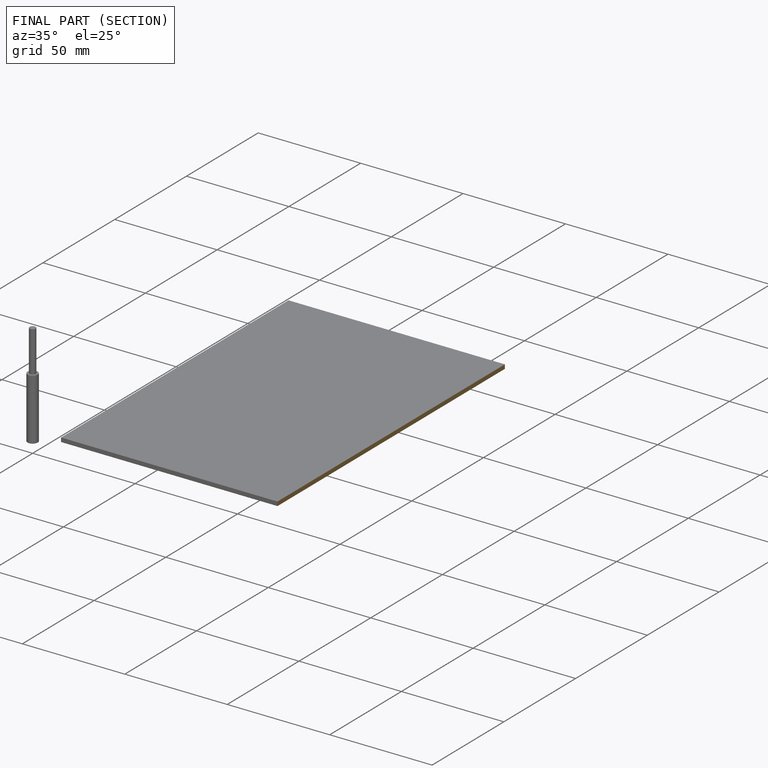
[diagram: finished part — half-section view (interior)]
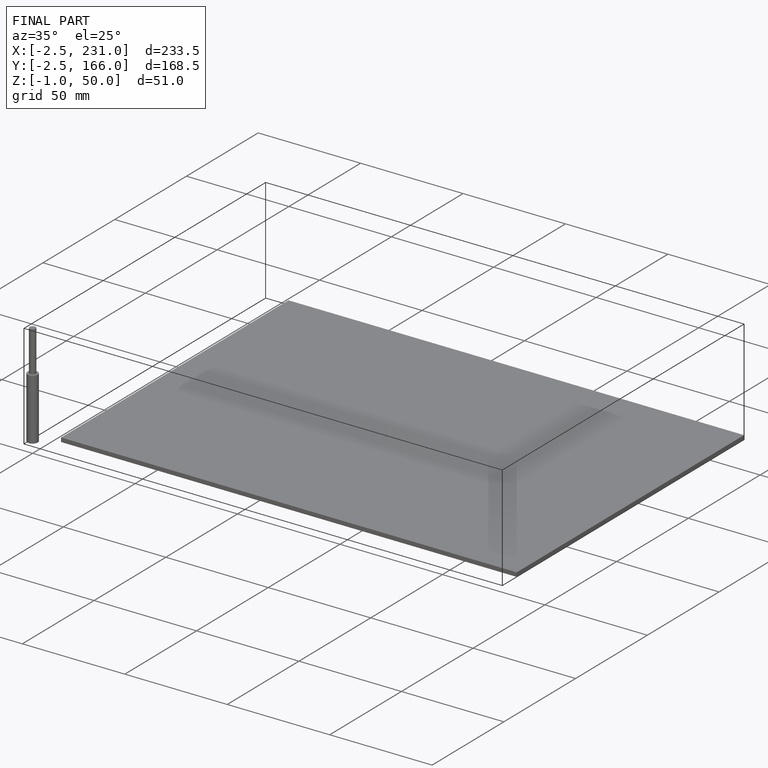
[diagram: finished part — iso view with bounding-box wireframe]
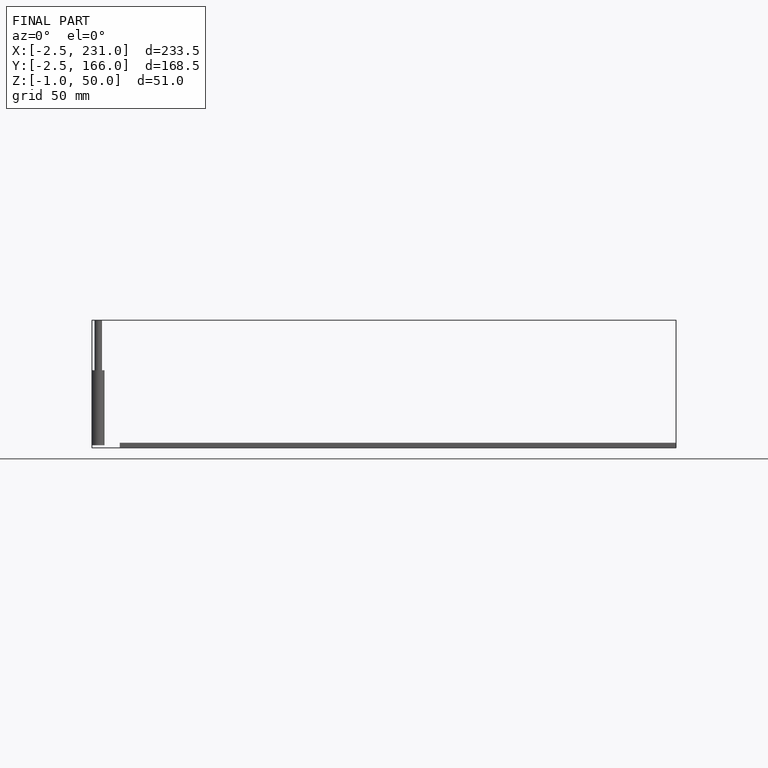
[diagram: finished part — front view with bounding-box wireframe]
